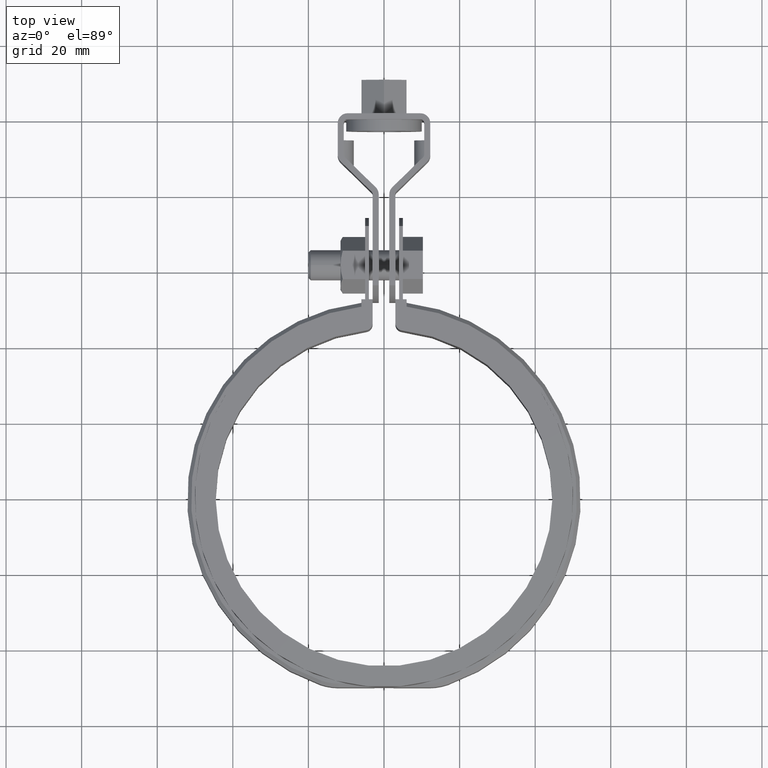
[diagram: clean part render]
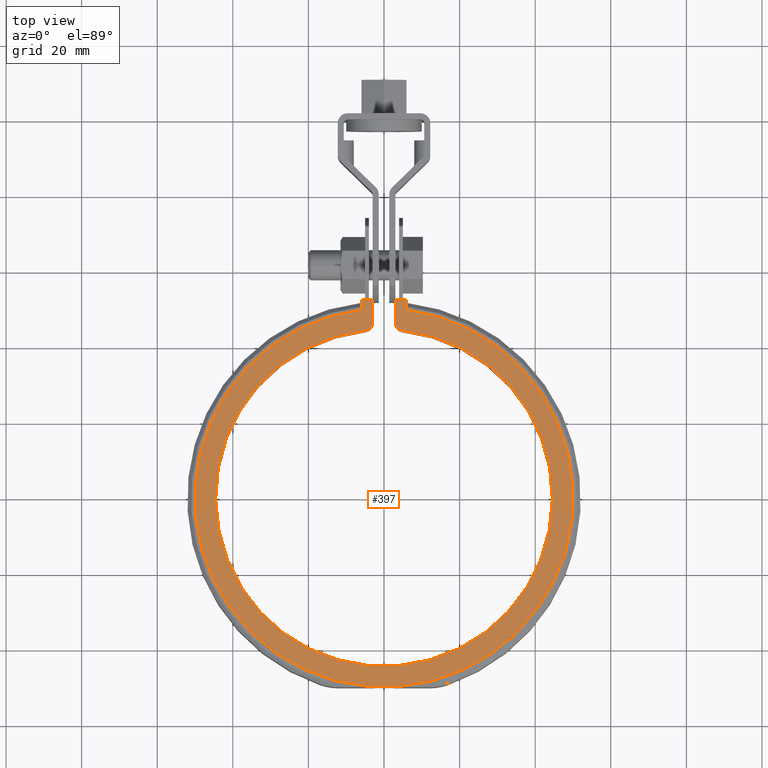
[diagram: same view with one face highlighted and labeled with its STEP entity id]
A machine part, top view. The second image highlights one B-rep face of the part: STEP entity #397.
In plain terms, the highlighted planar face has unit normal (0, 0, 1).
Its self-contained STEP definition (entity closure, byte-faithful):
#397 = ADVANCED_FACE( '', ( #702 ), #703, .T. );
#702 = FACE_OUTER_BOUND( '', #1714, .T. );
#703 = PLANE( '', #1715 );
#1714 = EDGE_LOOP( '', ( #3266, #3267, #3268, #3269, #3270, #3271, #3272, #3273, #3274, #3275 ) );
#1715 = AXIS2_PLACEMENT_3D( '', #3276, #3277, #3278 );
#3266 = ORIENTED_EDGE( '', *, *, #4626, .T. );
#3267 = ORIENTED_EDGE( '', *, *, #4593, .F. );
#3268 = ORIENTED_EDGE( '', *, *, #4625, .F. );
#3269 = ORIENTED_EDGE( '', *, *, #4608, .F. );
#3270 = ORIENTED_EDGE( '', *, *, #4616, .F. );
#3271 = ORIENTED_EDGE( '', *, *, #4586, .F. );
#3272 = ORIENTED_EDGE( '', *, *, #4627, .T. );
#3273 = ORIENTED_EDGE( '', *, *, #4531, .T. );
#3274 = ORIENTED_EDGE( '', *, *, #4628, .T. );
#3275 = ORIENTED_EDGE( '', *, *, #4629, .T. );
#3276 = CARTESIAN_POINT( '', ( -5.24038012570140, 48.1024067066612, 14.0000000000000 ) );
#3277 = DIRECTION( '', ( 0.000000000000000, 0.000000000000000, 1.00000000000000 ) );
#3278 = DIRECTION( '', ( -0.141271445606700, 0.989970897883465, 0.000000000000000 ) );
#4531 = EDGE_CURVE( '', #5260, #5258, #5261, .T. );
#4586 = EDGE_CURVE( '', #5347, #5350, #5351, .T. );
#4593 = EDGE_CURVE( '', #5361, #5362, #5363, .T. );
#4608 = EDGE_CURVE( '', #5385, #5387, #5388, .T. );
#4616 = EDGE_CURVE( '', #5350, #5385, #5400, .T. );
#4625 = EDGE_CURVE( '', #5387, #5361, #5414, .T. );
#4626 = EDGE_CURVE( '', #5415, #5362, #5416, .T. );
#4627 = EDGE_CURVE( '', #5347, #5260, #5417, .T. );
#4628 = EDGE_CURVE( '', #5258, #5418, #5419, .T. );
#4629 = EDGE_CURVE( '', #5418, #5415, #5420, .T. );
#5258 = VERTEX_POINT( '', #7876 );
#5260 = VERTEX_POINT( '', #7879 );
#5261 = CIRCLE( '', #7880, 2.00000000000000 );
#5347 = VERTEX_POINT( '', #8119 );
#5350 = VERTEX_POINT( '', #8123 );
#5351 = LINE( '', #8124, #8125 );
#5361 = VERTEX_POINT( '', #8141 );
#5362 = VERTEX_POINT( '', #8142 );
#5363 = LINE( '', #8143, #8144 );
#5385 = VERTEX_POINT( '', #8173 );
#5387 = VERTEX_POINT( '', #8176 );
#5388 = CIRCLE( '', #8177, 50.0500000000000 );
#5400 = LINE( '', #8193, #8194 );
#5414 = LINE( '', #8222, #8223 );
#5415 = VERTEX_POINT( '', #8224 );
#5416 = LINE( '', #8225, #8226 );
#5417 = LINE( '', #8227, #8228 );
#5418 = VERTEX_POINT( '', #8229 );
#5419 = CIRCLE( '', #8230, 44.5500000000000 );
#5420 = CIRCLE( '', #8231, 2.00000000000000 );
#7876 = CARTESIAN_POINT( '', ( 4.78517722878625, 44.2922631944802, 14.0000000000000 ) );
#7879 = CARTESIAN_POINT( '', ( 2.99999999999999, 46.2806925185870, 14.0000000000000 ) );
#7880 = AXIS2_PLACEMENT_3D( '', #9194, #9195, #9196 );
#8119 = CARTESIAN_POINT( '', ( 2.99999999999999, 52.5500000000000, 14.0000000000000 ) );
#8123 = CARTESIAN_POINT( '', ( 6.00000000000000, 52.5500000000000, 14.0000000000000 ) );
#8124 = CARTESIAN_POINT( '', ( 5.00000000000001, 52.5500000000000, 14.0000000000000 ) );
#8125 = VECTOR( '', #9244, 1000.00000000000 );
#8141 = CARTESIAN_POINT( '', ( -6.00000000000000, 52.5500000000000, 14.0000000000000 ) );
#8142 = CARTESIAN_POINT( '', ( -2.99999999999934, 52.5500000000000, 14.0000000000000 ) );
#8143 = CARTESIAN_POINT( '', ( -6.00000000000000, 52.5500000000000, 14.0000000000000 ) );
#8144 = VECTOR( '', #9251, 1000.00000000000 );
#8173 = CARTESIAN_POINT( '', ( 6.00000000000000, 49.6890581516696, 14.0000000000000 ) );
#8176 = CARTESIAN_POINT( '', ( -6.00000000000004, 49.6890581516695, 14.0000000000000 ) );
#8177 = AXIS2_PLACEMENT_3D( '', #9278, #9279, #9280 );
#8193 = CARTESIAN_POINT( '', ( 6.00000000000000, 52.5500000000000, 14.0000000000000 ) );
#8194 = VECTOR( '', #9294, 1000.00000000000 );
#8222 = CARTESIAN_POINT( '', ( -6.00000000000000, 49.6890581516696, 14.0000000000000 ) );
#8223 = VECTOR( '', #9300, 1000.00000000000 );
#8224 = CARTESIAN_POINT( '', ( -2.99999999999934, 46.2806925185871, 14.0000000000000 ) );
#8225 = CARTESIAN_POINT( '', ( -2.99999999999934, 46.2806925185871, 14.0000000000000 ) );
#8226 = VECTOR( '', #9301, 1000.00000000000 );
#8227 = CARTESIAN_POINT( '', ( 2.99999999999999, 52.5500000000000, 14.0000000000000 ) );
#8228 = VECTOR( '', #9302, 1000.00000000000 );
#8229 = CARTESIAN_POINT( '', ( -4.78517722878559, 44.2922631944803, 14.0000000000000 ) );
#8230 = AXIS2_PLACEMENT_3D( '', #9303, #9304, #9305 );
#8231 = AXIS2_PLACEMENT_3D( '', #9306, #9307, #9308 );
#9194 = CARTESIAN_POINT( '', ( 5.00000000000000, 46.2806925185871, 14.0000000000000 ) );
#9195 = DIRECTION( '', ( 0.000000000000000, 0.000000000000000, 1.00000000000000 ) );
#9196 = DIRECTION( '', ( -1.00000000000000, -1.16573417585641E-015, 0.000000000000000 ) );
#9244 = DIRECTION( '', ( 1.00000000000000, 0.000000000000000, 0.000000000000000 ) );
#9251 = DIRECTION( '', ( 1.00000000000000, 0.000000000000000, 0.000000000000000 ) );
#9278 = CARTESIAN_POINT( '', ( -8.67361737988404E-016, 0.000000000000000, 14.0000000000000 ) );
#9279 = DIRECTION( '', ( 0.000000000000000, 0.000000000000000, -1.00000000000000 ) );
#9280 = DIRECTION( '', ( 1.00000000000000, 0.000000000000000, 0.000000000000000 ) );
#9294 = DIRECTION( '', ( -5.55111512312578E-017, -1.00000000000000, 0.000000000000000 ) );
#9300 = DIRECTION( '', ( 5.55111512312578E-017, 1.00000000000000, 0.000000000000000 ) );
#9301 = DIRECTION( '', ( 4.16333634234434E-017, 1.00000000000000, 0.000000000000000 ) );
#9302 = DIRECTION( '', ( -4.16333634234434E-017, -1.00000000000000, 0.000000000000000 ) );
#9303 = CARTESIAN_POINT( '', ( 8.67361737988404E-016, 1.38777878078145E-014, 14.0000000000000 ) );
#9304 = DIRECTION( '', ( 0.000000000000000, 0.000000000000000, -1.00000000000000 ) );
#9305 = DIRECTION( '', ( 1.00000000000000, 1.38777878078145E-017, 0.000000000000000 ) );
#9306 = CARTESIAN_POINT( '', ( -4.99999999999933, 46.2806925185871, 14.0000000000000 ) );
#9307 = DIRECTION( '', ( 0.000000000000000, 0.000000000000000, 1.00000000000000 ) );
#9308 = DIRECTION( '', ( 1.00000000000000, 1.34614541735800E-015, 0.000000000000000 ) );